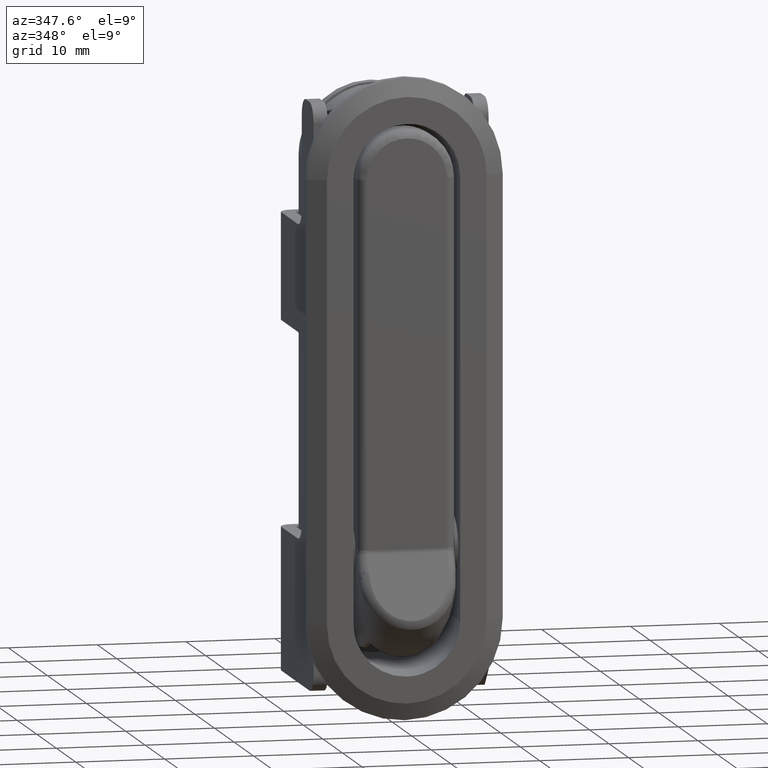
[diagram: clean part render]
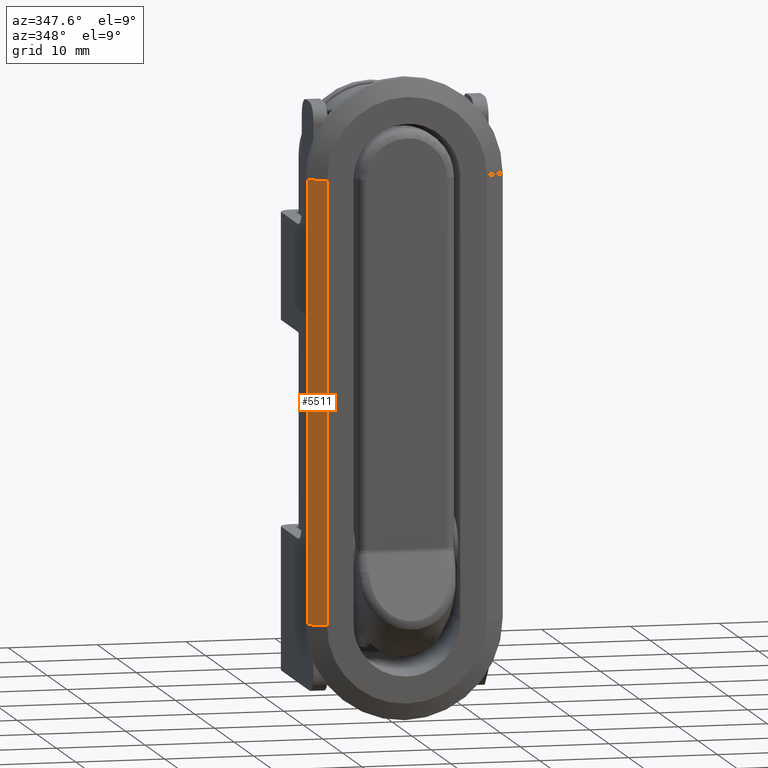
[diagram: same view with one face highlighted and labeled with its STEP entity id]
A machine part, auxiliary view. The second image highlights one B-rep face of the part: STEP entity #5511.
In plain terms, the highlighted face is a freeform B-spline surface patch.
Its self-contained STEP definition (entity closure, byte-faithful):
#3293=CARTESIAN_POINT('',(-11.000000000005400,-6.499999999985849,-8.000000000134840));
#3294=VERTEX_POINT('',#3293);
#3400=CARTESIAN_POINT('',(-11.000000000005400,-6.499999999985849,41.499999999867853));
#3401=VERTEX_POINT('',#3400);
#3486=CARTESIAN_POINT('',(-11.000000000005400,-6.499999999985849,-8.000000000134840));
#3487=CARTESIAN_POINT('',(-11.000000000005400,-6.499999999985849,41.499999999867853));
#3488=QUASI_UNIFORM_CURVE('',1,(#3486,#3487),.UNSPECIFIED.,.F.,.U.);
#3489=EDGE_CURVE('',#3294,#3401,#3488,.T.);
#5447=CARTESIAN_POINT('',(-9.000000000005288,-7.499999999985819,41.499999999867853));
#5448=VERTEX_POINT('',#5447);
#5449=CARTESIAN_POINT('',(-11.000000000005400,-6.499999999985849,41.499999999867853));
#5450=CARTESIAN_POINT('',(-9.000000000005288,-7.499999999985819,41.499999999867853));
#5451=QUASI_UNIFORM_CURVE('',1,(#5449,#5450),.UNSPECIFIED.,.F.,.U.);
#5452=EDGE_CURVE('',#3401,#5448,#5451,.T.);
#5490=CARTESIAN_POINT('',(-11.099899996129000,-6.450050001924002,-10.472524904194360));
#5491=CARTESIAN_POINT('',(-8.900099950237493,-7.549950024869717,-10.472524904194360));
#5492=CARTESIAN_POINT('',(-11.099899996129000,-6.450050001924002,43.972526231620847));
#5493=CARTESIAN_POINT('',(-8.900099950237493,-7.549950024869717,43.972526231620847));
#5494=B_SPLINE_SURFACE_WITH_KNOTS('',1,1,((#5490,#5492),(#5491,#5493)),.UNSPECIFIED.,.F.,.F.,.U.,(2,2),(2,2),(0.0,2.459451219760264),(0.0,54.445051135815213),.UNSPECIFIED.);
#5495=CARTESIAN_POINT('',(-9.000000000005288,-7.499999999985819,-8.000000000134840));
#5496=VERTEX_POINT('',#5495);
#5497=CARTESIAN_POINT('',(-11.000000000005400,-6.499999999985849,-8.000000000134840));
#5498=CARTESIAN_POINT('',(-9.000000000005288,-7.499999999985819,-8.000000000134840));
#5499=QUASI_UNIFORM_CURVE('',1,(#5497,#5498),.UNSPECIFIED.,.F.,.U.);
#5500=EDGE_CURVE('',#3294,#5496,#5499,.T.);
#5501=ORIENTED_EDGE('',*,*,#5500,.T.);
#5502=CARTESIAN_POINT('',(-9.000000000005288,-7.499999999985819,41.499999999867853));
#5503=CARTESIAN_POINT('',(-9.000000000005288,-7.499999999985819,-8.000000000134840));
#5504=QUASI_UNIFORM_CURVE('',1,(#5502,#5503),.UNSPECIFIED.,.F.,.U.);
#5505=EDGE_CURVE('',#5448,#5496,#5504,.T.);
#5506=ORIENTED_EDGE('',*,*,#5505,.F.);
#5507=ORIENTED_EDGE('',*,*,#5452,.F.);
#5508=ORIENTED_EDGE('',*,*,#3489,.F.);
#5509=EDGE_LOOP('',(#5501,#5506,#5507,#5508));
#5510=FACE_OUTER_BOUND('',#5509,.T.);
#5511=ADVANCED_FACE('',(#5510),#5494,.T.);